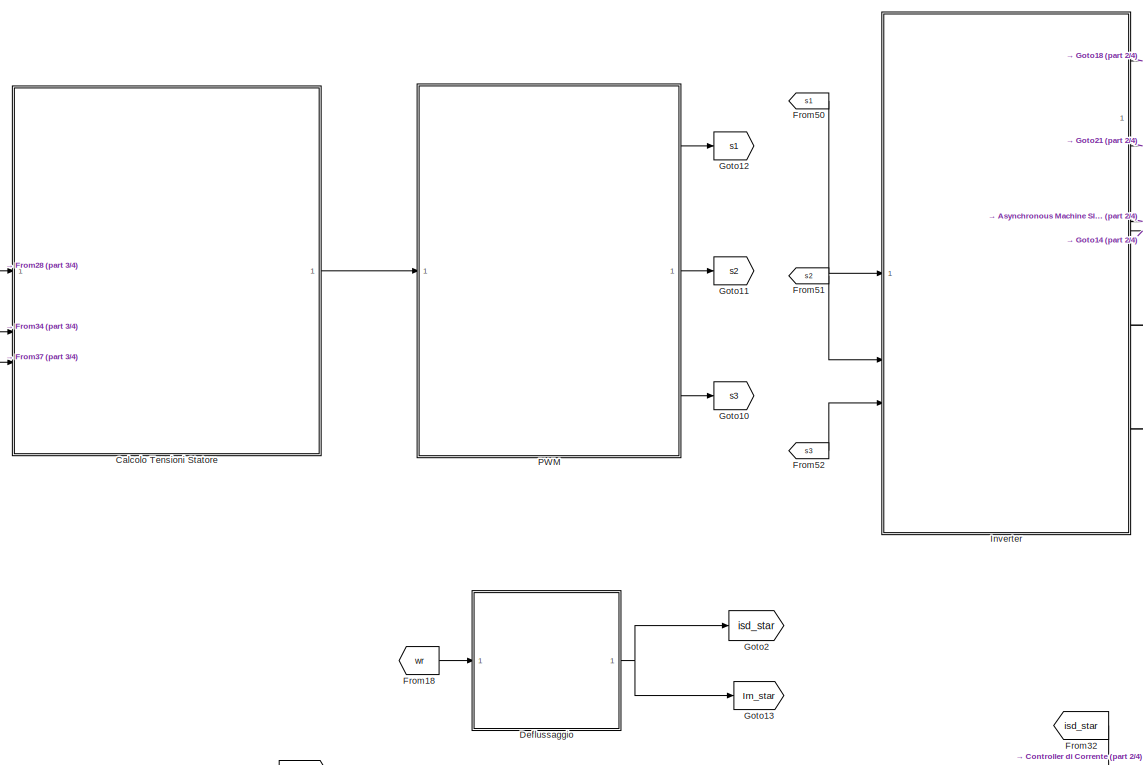
[diagram: root canvas - part 1/4, middle left region]
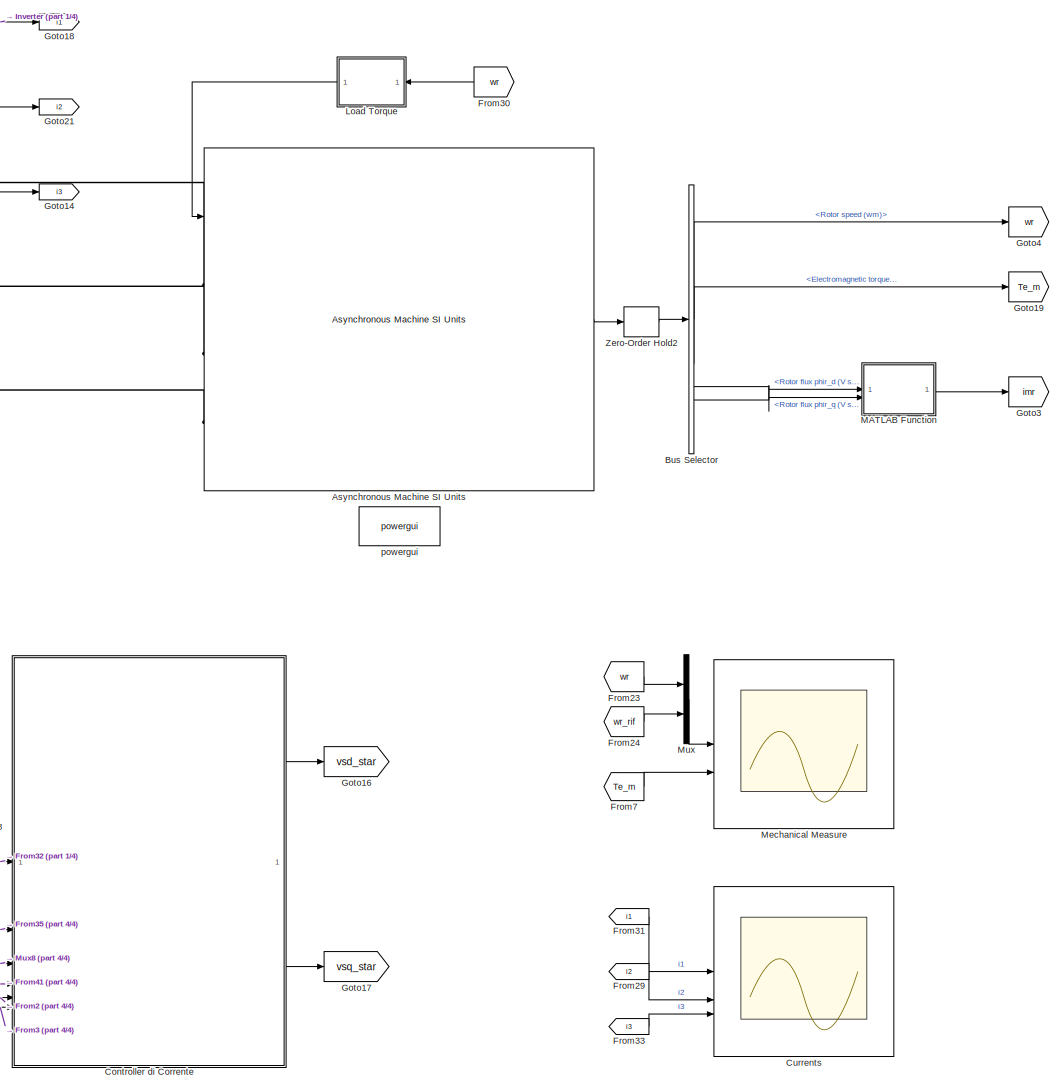
[diagram: root canvas - part 2/4, right side, full height]
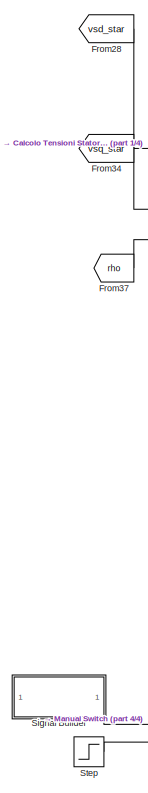
[diagram: root canvas - part 3/4, middle left region]
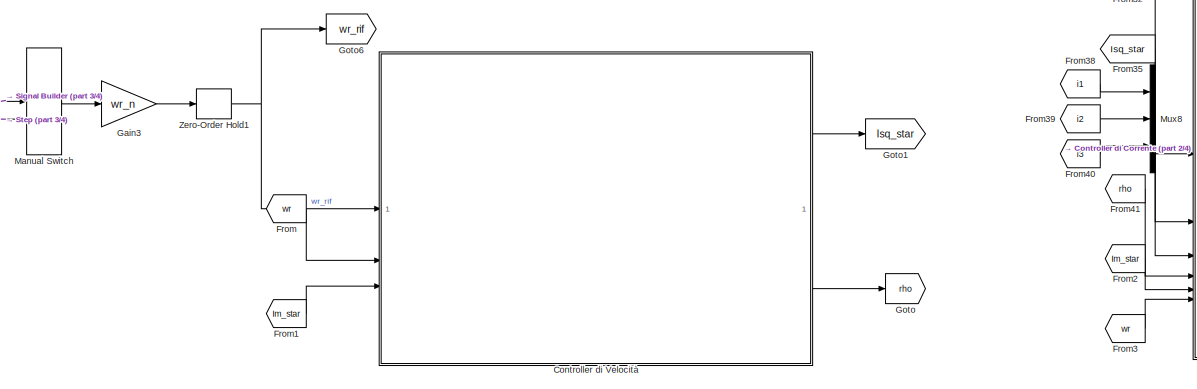
[diagram: root canvas - part 4/4, bottom left region]
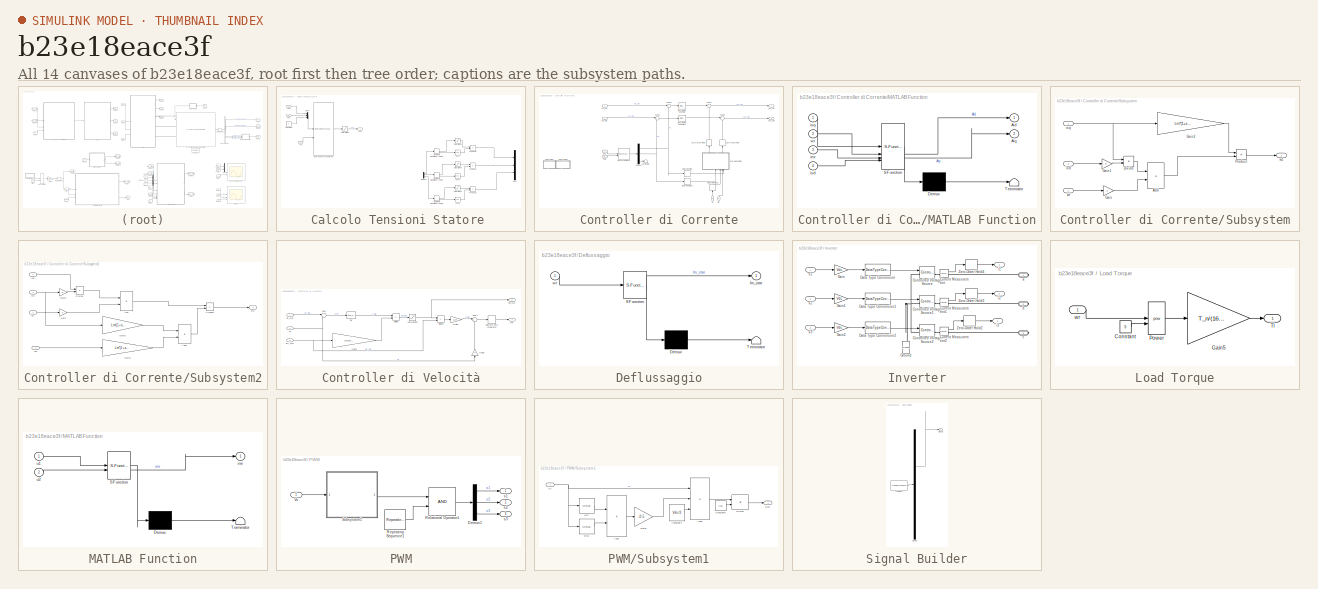
[diagram: thumbnail index - all 14 canvases of the model, root first then tree order]
MODEL slx_b23e18eace3f
KIND model
CONFIG AbsTol = auto
CONFIG EnableMultiTasking = off
CONFIG FixedStep = auto
CONFIG InitFcn = IFOCdatav6\n
CONFIG MaxStep = 1e-5
CONFIG MinStep = auto
CONFIG RelTol = 1e-4
CONFIG SampleTimeConstraint = Unconstrained
CONFIG SolverName = ode23tb
CONFIG StartTime = 0.0
CONFIG StopTime = 30
BLOCK [Reference] Asynchronous Machine SI Units  REF=spsAsynchronousMachineSIUnitsLib/Asynchronous Machine
SI Units
  LibrarySourceBlock = sps_lib/Electrical Machines/Asynchronous Machine\nSI Units
  SourceBlock = spsAsynchronousMachineSIUnitsLib/Asynchronous Machine\nSI Units
  SourceType = Asynchronous Machine
BLOCK [BusSelector] Bus Selector
  OutputSignals = Mechanical.Rotor speed (wm),Mechanical.Electromagnetic torque Te (N*m),Rotor measurements.Rotor flux phir_d (V s),Rotor measurements.Rotor flux phir_q (V s)
BLOCK [SubSystem] Calcolo Tensioni Statore 
BLOCK [ComplexToMagnitudeAngle] Calcolo Tensioni Statore /Complex to Magnitude-Angle3
  Commented = on
BLOCK [ComplexToMagnitudeAngle] Calcolo Tensioni Statore /Complex to Magnitude-Angle4
  Commented = on
BLOCK [ComplexToMagnitudeAngle] Calcolo Tensioni Statore /Complex to Magnitude-Angle5
  Commented = on
BLOCK [Constant] Calcolo Tensioni Statore /Constant4
  Value = 0
BLOCK [Trigonometry] Calcolo Tensioni Statore /Cos3
  Commented = on
  Operator = cos
BLOCK [Trigonometry] Calcolo Tensioni Statore /Cos4
  Commented = on
  Operator = cos
BLOCK [Trigonometry] Calcolo Tensioni Statore /Cos5
  Commented = on
  Operator = cos
BLOCK [Demux] Calcolo Tensioni Statore /Demux1
  Commented = on
  Outputs = 3
BLOCK [Reference] Calcolo Tensioni Statore /Inverse Park Transform1  REF=eeTransforms/Inverse
Park Transform
  LibrarySourceBlock = ee_sl_lib/Mathematical\nTransforms/Inverse\nPark Transform
  SourceBlock = eeTransforms/Inverse\nPark Transform
  SourceType = Inverse Park Transform
BLOCK [Mux] Calcolo Tensioni Statore /Mux1
  Commented = on
  DisplayOption = bar
  Inputs = 3
BLOCK [Mux] Calcolo Tensioni Statore /Mux7
  DisplayOption = bar
  Inputs = 3
BLOCK [Product] Calcolo Tensioni Statore /Product3
  Commented = on
BLOCK [Product] Calcolo Tensioni Statore /Product4
  Commented = on
BLOCK [Product] Calcolo Tensioni Statore /Product5
  Commented = on
BLOCK [Saturate] Calcolo Tensioni Statore /Saturation3
  LowerLimit = -Vsn_y*sqrt(2)
  UpperLimit = Vsn_y*sqrt(2)
BLOCK [Saturate] Calcolo Tensioni Statore /Saturation4
  Commented = on
  LowerLimit = -Vsn_y*sqrt(2)
  UpperLimit = Vsn_y*sqrt(2)
BLOCK [Saturate] Calcolo Tensioni Statore /Saturation5
  Commented = on
  LowerLimit = -Vsn_y*sqrt(2)
  UpperLimit = Vsn_y*sqrt(2)
BLOCK [Saturate] Calcolo Tensioni Statore /Saturation6
  Commented = on
  LowerLimit = -Vsn_y*sqrt(2)
  UpperLimit = Vsn_y*sqrt(2)
BLOCK [Outport] Calcolo Tensioni Statore /Vabc
BLOCK [Inport] Calcolo Tensioni Statore /rho
  Port = 3
BLOCK [Inport] Calcolo Tensioni Statore /vsd
BLOCK [Inport] Calcolo Tensioni Statore /vsq
  Port = 2
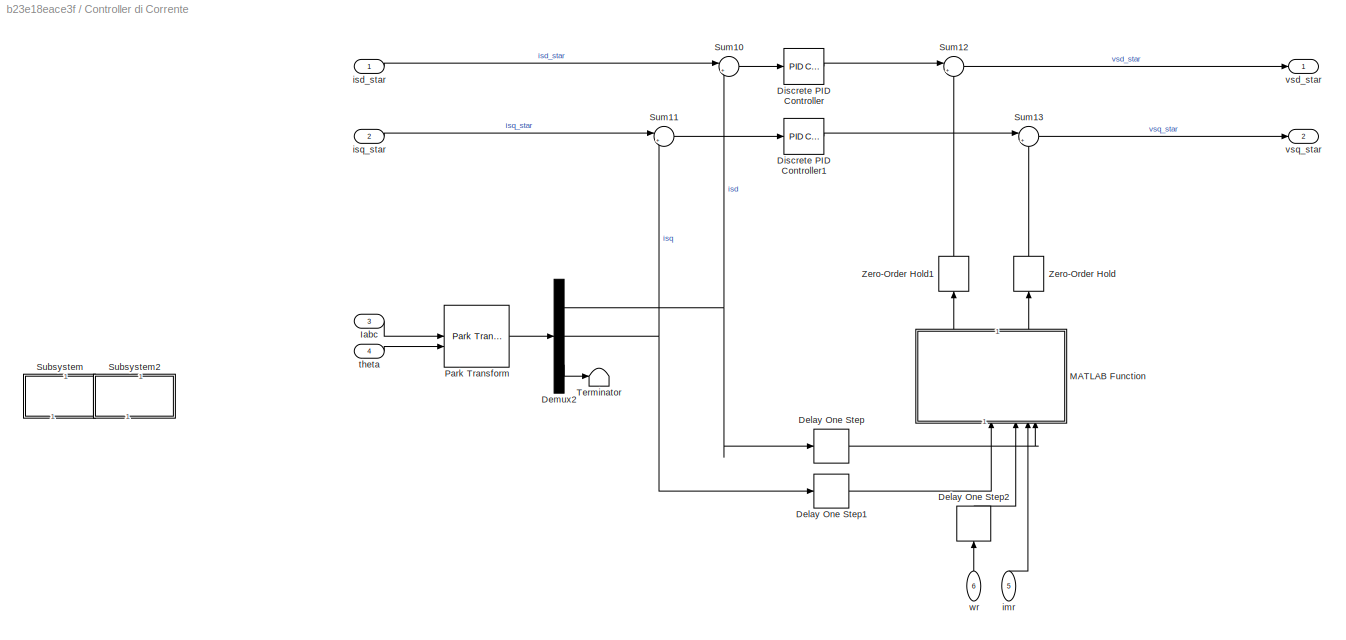
BLOCK [SubSystem] Controller di Corrente
BLOCK [Delay] Controller di Corrente/Delay One Step
  DelayLength = 1
  InputPortMap = u0
BLOCK [Delay] Controller di Corrente/Delay One Step1
  DelayLength = 1
  InitialCondition = Im_n
  InputPortMap = u0
BLOCK [Delay] Controller di Corrente/Delay One Step2
  DelayLength = 1
  InputPortMap = u0
  NameLocation = right
BLOCK [Demux] Controller di Corrente/Demux2
  Outputs = 3
BLOCK [Reference] Controller di Corrente/Discrete PID Controller  REF=slpidlib/PID Controller
  LibrarySourceBlock = simulink/Discrete/Discrete PID Controller
  SourceBlock = slpidlib/PID Controller
  SourceType = PID 1dof
BLOCK [Reference] Controller di Corrente/Discrete PID Controller1  REF=slpidlib/PID Controller
  LibrarySourceBlock = simulink/Discrete/Discrete PID Controller
  SourceBlock = slpidlib/PID Controller
  SourceType = PID 1dof
BLOCK [Inport] Controller di Corrente/Iabc
  Port = 3
BLOCK [SubSystem] Controller di Corrente/MATLAB Function
  ErrorFcn = Stateflow.Translate.translate
  LibrarySourceBlock = simulink/User-Defined\nFunctions/MATLAB Function
  NameLocation = right
  PermitHierarchicalResolution = ExplicitOnly
  SFBlockType = MATLAB Function
  TreatAsAtomicUnit = on
BLOCK [Demux] Controller di Corrente/MATLAB Function/ Demux 
  Outputs = 1
BLOCK [S-Function] Controller di Corrente/MATLAB Function/ SFunction 
  EnableBusSupport = on
  FunctionName = sf_sfun
  Parameters = Lm,Tr,p,sigma_r,sigma_s
  PortCounts = [4 3]
  SFcnIsStateOwnerBlock = off
  SFunctionDeploymentMode = off
  Tag = Stateflow S-Function 2
BLOCK [Terminator] Controller di Corrente/MATLAB Function/ Terminator 
BLOCK [Outport] Controller di Corrente/MATLAB Function/Ad
BLOCK [Outport] Controller di Corrente/MATLAB Function/Aq
  Port = 2
BLOCK [Inport] Controller di Corrente/MATLAB Function/imr
  Port = 3
BLOCK [Inport] Controller di Corrente/MATLAB Function/isd
  Port = 4
BLOCK [Inport] Controller di Corrente/MATLAB Function/isq
BLOCK [Inport] Controller di Corrente/MATLAB Function/wr
  Port = 2
BLOCK [Reference] Controller di Corrente/Park Transform  REF=eeTransforms/Park Transform
  LibrarySourceBlock = ee_sl_lib/Mathematical\nTransforms/Park Transform
  SourceBlock = eeTransforms/Park Transform
  SourceType = Park Transform
BLOCK [SubSystem] Controller di Corrente/Subsystem
  Commented = on
  NameLocation = right
BLOCK [Sum] Controller di Corrente/Subsystem/Add
  IconShape = rectangular
BLOCK [Product] Controller di Corrente/Subsystem/Divide
  Inputs = */
BLOCK [Gain] Controller di Corrente/Subsystem/Gain
  Gain = p
BLOCK [Gain] Controller di Corrente/Subsystem/Gain1
  Gain = Tr
BLOCK [Gain] Controller di Corrente/Subsystem/Gain2
  Gain = Lm*(1+sigma_s)-Lm/(1+sigma_r)
BLOCK [Product] Controller di Corrente/Subsystem/Product
BLOCK [Inport] Controller di Corrente/Subsystem/isd
  Port = 3
BLOCK [Inport] Controller di Corrente/Subsystem/isq
BLOCK [Outport] Controller di Corrente/Subsystem/w1
BLOCK [Inport] Controller di Corrente/Subsystem/wr
  Port = 2
BLOCK [SubSystem] Controller di Corrente/Subsystem2
  Commented = on
  NameLocation = right
BLOCK [Sum] Controller di Corrente/Subsystem2/Add
  IconShape = rectangular
BLOCK [Sum] Controller di Corrente/Subsystem2/Add1
  IconShape = rectangular
BLOCK [Product] Controller di Corrente/Subsystem2/Divide
  Inputs = */
BLOCK [Gain] Controller di Corrente/Subsystem2/Gain
  Gain = p
BLOCK [Gain] Controller di Corrente/Subsystem2/Gain1
  Gain = Tr
BLOCK [Gain] Controller di Corrente/Subsystem2/Gain2
  Gain = Lm*(1+sigma_s)-Lm/(1+sigma_r)
BLOCK [Gain] Controller di Corrente/Subsystem2/Gain3
  Gain = Lm/(1+sigma_r)
BLOCK [Product] Controller di Corrente/Subsystem2/Product
BLOCK [Inport] Controller di Corrente/Subsystem2/imr
  Port = 4
BLOCK [Inport] Controller di Corrente/Subsystem2/isd
BLOCK [Inport] Controller di Corrente/Subsystem2/isq
  Port = 3
BLOCK [Outport] Controller di Corrente/Subsystem2/w2
BLOCK [Inport] Controller di Corrente/Subsystem2/wr
  Port = 2
BLOCK [Sum] Controller di Corrente/Sum10
  Inputs = |+-
BLOCK [Sum] Controller di Corrente/Sum11
  Inputs = |+-
BLOCK [Sum] Controller di Corrente/Sum12
  Inputs = |++
BLOCK [Sum] Controller di Corrente/Sum13
  Inputs = |+-
BLOCK [Terminator] Controller di Corrente/Terminator
BLOCK [ZeroOrderHold] Controller di Corrente/Zero-Order Hold
  NameLocation = right
  SampleTime = -1
BLOCK [ZeroOrderHold] Controller di Corrente/Zero-Order Hold1
  NameLocation = right
  SampleTime = -1
BLOCK [Inport] Controller di Corrente/imr
  NameLocation = right
  Port = 5
BLOCK [Inport] Controller di Corrente/isd_star
BLOCK [Inport] Controller di Corrente/isq_star
  Port = 2
BLOCK [Inport] Controller di Corrente/theta
  Port = 4
BLOCK [Outport] Controller di Corrente/vsd_star
BLOCK [Outport] Controller di Corrente/vsq_star
  Port = 2
BLOCK [Inport] Controller di Corrente/wr
  NameLocation = right
  Port = 6
BLOCK [SubSystem] Controller di Velocità
BLOCK [DiscreteIntegrator] Controller di Velocità/Discrete-Time Integrator
  ICPrevOutput = DiscIntNeverNeededParam
  ICPrevScaledInput = DiscIntNeverNeededParam
  InitialConditionSetting = Auto
  SampleTime = Ts
BLOCK [Product] Controller di Velocità/Divide
  Inputs = */
BLOCK [Product] Controller di Velocità/Divide1
  Inputs = */
BLOCK [Gain] Controller di Velocità/Gain4
  Gain = 3/2*p*Lm/(1+sigma_r)
BLOCK [Gain] Controller di Velocità/Gain5
  Gain = 1/Tr
BLOCK [Gain] Controller di Velocità/Gain6
  Gain = p
  NameLocation = right
BLOCK [Reference] Controller di Velocità/Rw  REF=slpidlib/PID Controller
  SourceBlock = slpidlib/PID Controller
  SourceType = PID 1dof
BLOCK [Saturate] Controller di Velocità/Saturation2
  LowerLimit = -0.96*Is_n*sqrt(2)
  UpperLimit = 0.96*Is_n*sqrt(2)
BLOCK [Sum] Controller di Velocità/Sum
  Inputs = |+-
BLOCK [Sum] Controller di Velocità/Sum1
  Inputs = |++
BLOCK [Inport] Controller di Velocità/imr_star
  Port = 3
BLOCK [Outport] Controller di Velocità/isq_star
BLOCK [Outport] Controller di Velocità/rho
  Port = 2
BLOCK [Inport] Controller di Velocità/wr
  Port = 2
BLOCK [Inport] Controller di Velocità/wr_star
BLOCK [Scope] Currents
  Floating = off
  NumInputPorts = 3
  ScopeSpecificationString = Simulink.scopes.TimeScopeBlockCfg('CurrentConfiguration', extmgr.ConfigurationSet(extmgr.Configuration('Core','General UI',true),extmgr.Configuration('Core','Source UI',true),extmgr.Configuration('Sources','WiredSimulink',true,'DataLoggingVariableName','ScopeData2'),extmgr.Configuration('Visuals','Time Domain',true,'SerializedDisplays',{struct('MinYLimReal','-878.4974','MaxYLimReal','915.11608','Y...<+2684ch>
BLOCK [SubSystem] Deflussaggio
  ErrorFcn = Stateflow.Translate.translate
  PermitHierarchicalResolution = ExplicitOnly
  SFBlockType = MATLAB Function
  TreatAsAtomicUnit = on
BLOCK [Demux] Deflussaggio/ Demux 
  Outputs = 1
BLOCK [S-Function] Deflussaggio/ SFunction 
  EnableBusSupport = on
  FunctionName = sf_sfun
  Parameters = Im_n,wr_n
  PortCounts = [1 2]
  SFcnIsStateOwnerBlock = off
  SFunctionDeploymentMode = off
  Tag = Stateflow S-Function 3
BLOCK [Terminator] Deflussaggio/ Terminator 
BLOCK [Outport] Deflussaggio/Im_star
BLOCK [Inport] Deflussaggio/wr
BLOCK [From] From
  GotoTag = wr
BLOCK [From] From1
  GotoTag = Im_star
BLOCK [From] From18
  GotoTag = wr
BLOCK [From] From2
  GotoTag = Im_star
BLOCK [From] From23
  GotoTag = wr
BLOCK [From] From24
  GotoTag = wr_rif
BLOCK [From] From28
  GotoTag = vsd_star
BLOCK [From] From29
  GotoTag = i2
BLOCK [From] From3
  GotoTag = wr
BLOCK [From] From30
  GotoTag = wr
  NameLocation = top
BLOCK [From] From31
  GotoTag = i1
BLOCK [From] From32
  GotoTag = isd_star
BLOCK [From] From33
  GotoTag = i3
BLOCK [From] From34
  GotoTag = vsq_star
BLOCK [From] From35
  GotoTag = Isq_star
BLOCK [From] From37
  GotoTag = rho
BLOCK [From] From38
  GotoTag = i1
BLOCK [From] From39
  GotoTag = i2
BLOCK [From] From40
  GotoTag = i3
BLOCK [From] From41
  GotoTag = rho
BLOCK [From] From50
  GotoTag = s1
BLOCK [From] From51
  GotoTag = s2
BLOCK [From] From52
  GotoTag = s3
BLOCK [From] From7
  GotoTag = Te_m
BLOCK [Gain] Gain3
  Gain = wr_n
BLOCK [Goto] Goto
  GotoTag = rho
BLOCK [Goto] Goto1
  GotoTag = Isq_star
BLOCK [Goto] Goto10
  GotoTag = s3
  NameLocation = top
BLOCK [Goto] Goto11
  GotoTag = s2
  NameLocation = top
BLOCK [Goto] Goto12
  GotoTag = s1
BLOCK [Goto] Goto13
  GotoTag = Im_star
BLOCK [Goto] Goto14
  GotoTag = i3
BLOCK [Goto] Goto16
  GotoTag = vsd_star
BLOCK [Goto] Goto17
  GotoTag = vsq_star
BLOCK [Goto] Goto18
  GotoTag = i1
BLOCK [Goto] Goto19
  GotoTag = Te_m
BLOCK [Goto] Goto2
  GotoTag = isd_star
BLOCK [Goto] Goto21
  GotoTag = i2
BLOCK [Goto] Goto3
  GotoTag = imr
BLOCK [Goto] Goto4
  GotoTag = wr
BLOCK [Goto] Goto6
  GotoTag = wr_rif
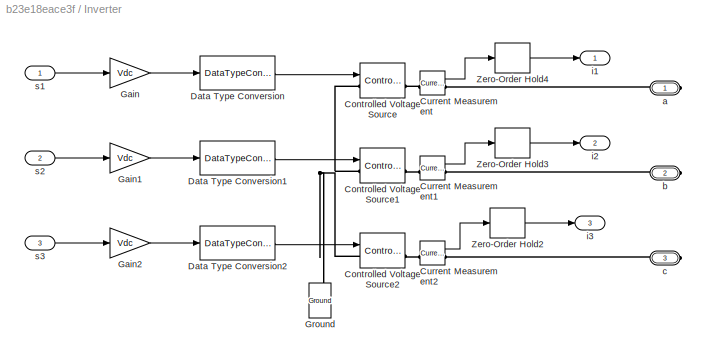
BLOCK [SubSystem] Inverter
BLOCK [Reference] Inverter/Controlled Voltage Source  REF=spsControlledVoltageSourceLib/Controlled Voltage Source
  LibrarySourceBlock = sps_lib/Sources/Controlled Voltage Source
  SourceBlock = spsControlledVoltageSourceLib/Controlled Voltage Source
  SourceType = Controlled Voltage Source
BLOCK [Reference] Inverter/Controlled Voltage Source1  REF=spsControlledVoltageSourceLib/Controlled Voltage Source
  LibrarySourceBlock = sps_lib/Sources/Controlled Voltage Source
  SourceBlock = spsControlledVoltageSourceLib/Controlled Voltage Source
  SourceType = Controlled Voltage Source
BLOCK [Reference] Inverter/Controlled Voltage Source2  REF=spsControlledVoltageSourceLib/Controlled Voltage Source
  LibrarySourceBlock = sps_lib/Sources/Controlled Voltage Source
  SourceBlock = spsControlledVoltageSourceLib/Controlled Voltage Source
  SourceType = Controlled Voltage Source
BLOCK [Reference] Inverter/Current Measurement  REF=spsCurrentMeasurementLib/Current Measurement
  LibrarySourceBlock = sps_lib/Sensors and Measurements/Current Measurement
  SourceBlock = spsCurrentMeasurementLib/Current Measurement
  SourceType = Current Measurement
  UserDataPersistent = on
BLOCK [Reference] Inverter/Current Measurement1  REF=spsCurrentMeasurementLib/Current Measurement
  LibrarySourceBlock = sps_lib/Sensors and Measurements/Current Measurement
  SourceBlock = spsCurrentMeasurementLib/Current Measurement
  SourceType = Current Measurement
  UserDataPersistent = on
BLOCK [Reference] Inverter/Current Measurement2  REF=spsCurrentMeasurementLib/Current Measurement
  LibrarySourceBlock = sps_lib/Sensors and Measurements/Current Measurement
  SourceBlock = spsCurrentMeasurementLib/Current Measurement
  SourceType = Current Measurement
  UserDataPersistent = on
BLOCK [DataTypeConversion] Inverter/Data Type Conversion
  OutDataTypeStr = double
  RndMeth = Floor
  SaturateOnIntegerOverflow = off
BLOCK [DataTypeConversion] Inverter/Data Type Conversion1
  OutDataTypeStr = double
  RndMeth = Floor
  SaturateOnIntegerOverflow = off
BLOCK [DataTypeConversion] Inverter/Data Type Conversion2
  OutDataTypeStr = double
  RndMeth = Floor
  SaturateOnIntegerOverflow = off
BLOCK [Gain] Inverter/Gain
  Gain = Vdc
BLOCK [Gain] Inverter/Gain1
  Gain = Vdc
BLOCK [Gain] Inverter/Gain2
  Gain = Vdc
BLOCK [Reference] Inverter/Ground  REF=spsGroundLib/Ground
  LibrarySourceBlock = sps_lib/Utilities/Ground
  NameLocation = right
  SourceBlock = spsGroundLib/Ground
  SourceType = Ground
BLOCK [ZeroOrderHold] Inverter/Zero-Order Hold2
  SampleTime = Ts
BLOCK [ZeroOrderHold] Inverter/Zero-Order Hold3
  SampleTime = Ts
BLOCK [ZeroOrderHold] Inverter/Zero-Order Hold4
  SampleTime = Ts
BLOCK [PMIOPort] Inverter/a
  Side = Right
BLOCK [PMIOPort] Inverter/b
  Port = 2
  Side = Right
BLOCK [PMIOPort] Inverter/c
  Port = 3
  Side = Right
BLOCK [Outport] Inverter/i1
BLOCK [Outport] Inverter/i2
  Port = 2
BLOCK [Outport] Inverter/i3
  Port = 3
BLOCK [Inport] Inverter/s1
BLOCK [Inport] Inverter/s2
  Port = 2
BLOCK [Inport] Inverter/s3
  Port = 3
BLOCK [SubSystem] Load Torque
  NameLocation = top
BLOCK [Constant] Load Torque/Constant
  Value = 3
BLOCK [Gain] Load Torque/Gain5
  Gain = T_n/(16*wr_n^3)
BLOCK [Math] Load Torque/Power
  Operator = pow
BLOCK [Outport] Load Torque/Tl
BLOCK [Inport] Load Torque/wr
BLOCK [SubSystem] MATLAB Function
  ErrorFcn = Stateflow.Translate.translate
  LibrarySourceBlock = simulink/User-Defined\nFunctions/MATLAB Function
  PermitHierarchicalResolution = ExplicitOnly
  SFBlockType = MATLAB Function
  TreatAsAtomicUnit = on
BLOCK [Demux] MATLAB Function/ Demux 
  Outputs = 1
BLOCK [S-Function] MATLAB Function/ SFunction 
  EnableBusSupport = on
  FunctionName = sf_sfun
  Parameters = Lm
  PortCounts = [2 2]
  SFcnIsStateOwnerBlock = off
  SFunctionDeploymentMode = off
  Tag = Stateflow S-Function 1
BLOCK [Terminator] MATLAB Function/ Terminator 
BLOCK [Outport] MATLAB Function/imr
BLOCK [Inport] MATLAB Function/u1
BLOCK [Inport] MATLAB Function/u2
  Port = 2
BLOCK [ManualSwitch] Manual Switch
BLOCK [Scope] Mechanical Measure
  Floating = off
  NumInputPorts = 2
  ScopeSpecificationString = Simulink.scopes.TimeScopeBlockCfg('CurrentConfiguration', extmgr.ConfigurationSet(extmgr.Configuration('Core','General UI',true),extmgr.Configuration('Core','Source UI',true),extmgr.Configuration('Sources','WiredSimulink',true,'DataLoggingVariableName','ScopeData1'),extmgr.Configuration('Visuals','Time Domain',true,'SerializedDisplays',{struct('MinYLimReal','-77.48808','MaxYLimReal','697.39268','Y...<+2137ch>
BLOCK [Mux] Mux
  DisplayOption = bar
  Inputs = 2
BLOCK [Mux] Mux8
  DisplayOption = bar
  Inputs = 3
BLOCK [SubSystem] PWM
BLOCK [Demux] PWM/Demux1
  Outputs = 3
BLOCK [RelationalOperator] PWM/Relational Operator1
  InputSameDT = off
  OutDataTypeStr = boolean
  RndMeth = Simplest
BLOCK [Reference] PWM/Repeating Sequence1  REF=simulink/Sources/Repeating
Sequence
  SourceBlock = simulink/Sources/Repeating\nSequence
  SourceType = Repeating table
BLOCK [SubSystem] PWM/Subsystem1
BLOCK [Sum] PWM/Subsystem1/Add1
  IconShape = rectangular
BLOCK [Sum] PWM/Subsystem1/Add2
  IconShape = rectangular
  Inputs = +++
BLOCK [Constant] PWM/Subsystem1/Constant7
  Value = Vdc/2
BLOCK [Constant] PWM/Subsystem1/Constant8
  Value = Vdc
BLOCK [Product] PWM/Subsystem1/Divide
  Inputs = */
  RndMeth = Zero
  SaturateOnIntegerOverflow = on
BLOCK [Outport] PWM/Subsystem1/Duty
BLOCK [Gain] PWM/Subsystem1/Gain1
  Gain = -0.5
BLOCK [MinMax] PWM/Subsystem1/Min
BLOCK [MinMax] PWM/Subsystem1/Min1
  Function = max
BLOCK [Inport] PWM/Subsystem1/Vs
  SampleTime = Ts
BLOCK [Inport] PWM/Vs
BLOCK [Outport] PWM/s1
BLOCK [Outport] PWM/s2
  Port = 2
BLOCK [Outport] PWM/s3
  Port = 3
BLOCK [SubSystem] Signal Builder
  ClipboardFcn = sigbuilder_block('clipboard');
  CloseFcn = sigbuilder_block('close');
  ContinueFcn = sigbuilder_block('continue');
  CopyFcn = sigbuilder_block('copy');
  DeleteFcn = sigbuilder_block('delete');
  LoadFcn = sigbuilder_block('load');
  MaskHideContents = on
  ModelCloseFcn = sigbuilder_block('modelClose');
  NameChangeFcn = sigbuilder_block('namechange');
  OpenFcn = sigbuilder_block('open',[433.2 162 550.8 400.2 ]);
  PauseFcn = sigbuilder_block('pause');
  PreSaveFcn = sigbuilder_block('preSave');
  StartFcn = sigbuilder_block('start');
  StopFcn = sigbuilder_block('stop');
  Tag = STV Subsys
BLOCK [Demux] Signal Builder/Demux
  DisplayOption = none
  Outputs = 1
  Tag = STV Demux
BLOCK [FromWorkspace] Signal Builder/FromWs
  Tag = STV FromWs
  VariableName = tuvar
BLOCK [Outport] Signal Builder/Signal 1
  Tag = STV Outport
BLOCK [Step] Step
  After = 2
  SampleTime = 0
  Time = 0
BLOCK [ZeroOrderHold] Zero-Order Hold1
  SampleTime = Ts
BLOCK [ZeroOrderHold] Zero-Order Hold2
  SampleTime = Ts
BLOCK [Reference] powergui  REF=sps_lib/powergui
  Priority = 1
  SourceBlock = sps_lib/powergui
  SourceType = PSB option menu block
LINE Asynchronous Machine SI Units:1 -> Zero-Order Hold2:1
LINE Bus Selector:1 -> Goto4:1
LINE Bus Selector:2 -> Goto19:1
LINE Bus Selector:3 -> MATLAB Function:1
LINE Bus Selector:4 -> MATLAB Function:2
LINE Calcolo Tensioni Statore /Complex to Magnitude-Angle3:1 -> Calcolo Tensioni Statore /Saturation6:1
LINE Calcolo Tensioni Statore /Complex to Magnitude-Angle3:2 -> Calcolo Tensioni Statore /Cos3:1
LINE Calcolo Tensioni Statore /Complex to Magnitude-Angle4:1 -> Calcolo Tensioni Statore /Saturation5:1
LINE Calcolo Tensioni Statore /Complex to Magnitude-Angle4:2 -> Calcolo Tensioni Statore /Cos4:1
LINE Calcolo Tensioni Statore /Complex to Magnitude-Angle5:1 -> Calcolo Tensioni Statore /Saturation4:1
LINE Calcolo Tensioni Statore /Complex to Magnitude-Angle5:2 -> Calcolo Tensioni Statore /Cos5:1
LINE Calcolo Tensioni Statore /Constant4:1 -> Calcolo Tensioni Statore /Mux7:3
LINE Calcolo Tensioni Statore /Cos3:1 -> Calcolo Tensioni Statore /Product5:2
LINE Calcolo Tensioni Statore /Cos4:1 -> Calcolo Tensioni Statore /Product4:2
LINE Calcolo Tensioni Statore /Cos5:1 -> Calcolo Tensioni Statore /Product3:2
LINE Calcolo Tensioni Statore /Demux1:1 -> Calcolo Tensioni Statore /Complex to Magnitude-Angle3:1
LINE Calcolo Tensioni Statore /Demux1:2 -> Calcolo Tensioni Statore /Complex to Magnitude-Angle4:1
LINE Calcolo Tensioni Statore /Demux1:3 -> Calcolo Tensioni Statore /Complex to Magnitude-Angle5:1
LINE Calcolo Tensioni Statore /Inverse Park Transform1:1 -> Calcolo Tensioni Statore /Saturation3:1
LINE Calcolo Tensioni Statore /Mux7:1 -> Calcolo Tensioni Statore /Inverse Park Transform1:1
LINE Calcolo Tensioni Statore /Product3:1 -> Calcolo Tensioni Statore /Mux1:3
LINE Calcolo Tensioni Statore /Product4:1 -> Calcolo Tensioni Statore /Mux1:2
LINE Calcolo Tensioni Statore /Product5:1 -> Calcolo Tensioni Statore /Mux1:1
LINE Calcolo Tensioni Statore /Saturation3:1 -> Calcolo Tensioni Statore /Vabc:1
LINE Calcolo Tensioni Statore /Saturation4:1 -> Calcolo Tensioni Statore /Product3:1
LINE Calcolo Tensioni Statore /Saturation5:1 -> Calcolo Tensioni Statore /Product4:1
LINE Calcolo Tensioni Statore /Saturation6:1 -> Calcolo Tensioni Statore /Product5:1
LINE Calcolo Tensioni Statore /rho:1 -> Calcolo Tensioni Statore /Inverse Park Transform1:2
LINE Calcolo Tensioni Statore /vsd:1 -> Calcolo Tensioni Statore /Mux7:1
LINE Calcolo Tensioni Statore /vsq:1 -> Calcolo Tensioni Statore /Mux7:2
LINE Calcolo Tensioni Statore :1 -> PWM:1
LINE Controller di Corrente/Delay One Step1:1 -> Controller di Corrente/MATLAB Function:1
LINE Controller di Corrente/Delay One Step2:1 -> Controller di Corrente/MATLAB Function:2
LINE Controller di Corrente/Delay One Step:1 -> Controller di Corrente/MATLAB Function:4
NET Controller di Corrente/Demux2:1 -> Controller di Corrente/Delay One Step:1, Controller di Corrente/Sum10:2
NET Controller di Corrente/Demux2:2 -> Controller di Corrente/Delay One Step1:1, Controller di Corrente/Sum11:2
LINE Controller di Corrente/Demux2:3 -> Controller di Corrente/Terminator:1
LINE Controller di Corrente/Discrete PID Controller1:1 -> Controller di Corrente/Sum13:1
LINE Controller di Corrente/Discrete PID Controller:1 -> Controller di Corrente/Sum12:1
LINE Controller di Corrente/Iabc:1 -> Controller di Corrente/Park Transform:1
LINE Controller di Corrente/MATLAB Function:1 -> Controller di Corrente/Zero-Order Hold1:1
LINE Controller di Corrente/MATLAB Function:2 -> Controller di Corrente/Zero-Order Hold:1
LINE Controller di Corrente/Park Transform:1 -> Controller di Corrente/Demux2:1
LINE Controller di Corrente/Subsystem/Add:1 -> Controller di Corrente/Subsystem/Product:2
LINE Controller di Corrente/Subsystem/Divide:1 -> Controller di Corrente/Subsystem/Add:1
LINE Controller di Corrente/Subsystem/Gain1:1 -> Controller di Corrente/Subsystem/Divide:2
LINE Controller di Corrente/Subsystem/Gain2:1 -> Controller di Corrente/Subsystem/Product:1
LINE Controller di Corrente/Subsystem/Gain:1 -> Controller di Corrente/Subsystem/Add:2
LINE Controller di Corrente/Subsystem/Product:1 -> Controller di Corrente/Subsystem/w1:1
LINE Controller di Corrente/Subsystem/isd:1 -> Controller di Corrente/Subsystem/Gain1:1
NET Controller di Corrente/Subsystem/isq:1 -> Controller di Corrente/Subsystem/Divide:1, Controller di Corrente/Subsystem/Gain2:1
LINE Controller di Corrente/Subsystem/wr:1 -> Controller di Corrente/Subsystem/Gain:1
LINE Controller di Corrente/Subsystem2/Add1:1 -> Controller di Corrente/Subsystem2/Product:2
LINE Controller di Corrente/Subsystem2/Add:1 -> Controller di Corrente/Subsystem2/Product:1
LINE Controller di Corrente/Subsystem2/Divide:1 -> Controller di Corrente/Subsystem2/Add:1
LINE Controller di Corrente/Subsystem2/Gain1:1 -> Controller di Corrente/Subsystem2/Divide:2
LINE Controller di Corrente/Subsystem2/Gain2:1 -> Controller di Corrente/Subsystem2/Add1:2
LINE Controller di Corrente/Subsystem2/Gain3:1 -> Controller di Corrente/Subsystem2/Add1:1
LINE Controller di Corrente/Subsystem2/Gain:1 -> Controller di Corrente/Subsystem2/Add:2
LINE Controller di Corrente/Subsystem2/Product:1 -> Controller di Corrente/Subsystem2/w2:1
NET Controller di Corrente/Subsystem2/imr:1 -> Controller di Corrente/Subsystem2/Gain1:1, Controller di Corrente/Subsystem2/Gain3:1
LINE Controller di Corrente/Subsystem2/isd:1 -> Controller di Corrente/Subsystem2/Gain2:1
LINE Controller di Corrente/Subsystem2/isq:1 -> Controller di Corrente/Subsystem2/Divide:1
LINE Controller di Corrente/Subsystem2/wr:1 -> Controller di Corrente/Subsystem2/Gain:1
LINE Controller di Corrente/Sum10:1 -> Controller di Corrente/Discrete PID Controller:1
LINE Controller di Corrente/Sum11:1 -> Controller di Corrente/Discrete PID Controller1:1
LINE Controller di Corrente/Sum12:1 -> Controller di Corrente/vsd_star:1
LINE Controller di Corrente/Sum13:1 -> Controller di Corrente/vsq_star:1
LINE Controller di Corrente/Zero-Order Hold1:1 -> Controller di Corrente/Sum12:2
LINE Controller di Corrente/Zero-Order Hold:1 -> Controller di Corrente/Sum13:2
LINE Controller di Corrente/imr:1 -> Controller di Corrente/MATLAB Function:3
LINE Controller di Corrente/isd_star:1 -> Controller di Corrente/Sum10:1
LINE Controller di Corrente/isq_star:1 -> Controller di Corrente/Sum11:1
LINE Controller di Corrente/theta:1 -> Controller di Corrente/Park Transform:2
LINE Controller di Corrente/wr:1 -> Controller di Corrente/Delay One Step2:1
LINE Controller di Corrente:1 -> Goto16:1
LINE Controller di Corrente:2 -> Goto17:1
LINE Controller di Velocità/Discrete-Time Integrator:1 -> Controller di Velocità/rho:1
LINE Controller di Velocità/Divide1:1 -> Controller di Velocità/Gain5:1
LINE Controller di Velocità/Divide:1 -> Controller di Velocità/Saturation2:1
LINE Controller di Velocità/Gain4:1 -> Controller di Velocità/Divide:2
LINE Controller di Velocità/Gain5:1 -> Controller di Velocità/Sum1:1
LINE Controller di Velocità/Gain6:1 -> Controller di Velocità/Sum1:2
LINE Controller di Velocità/Rw:1 -> Controller di Velocità/Divide:1
NET Controller di Velocità/Saturation2:1 -> Controller di Velocità/Divide1:1, Controller di Velocità/isq_star:1
LINE Controller di Velocità/Sum1:1 -> Controller di Velocità/Discrete-Time Integrator:1
LINE Controller di Velocità/Sum:1 -> Controller di Velocità/Rw:1
NET Controller di Velocità/imr_star:1 -> Controller di Velocità/Divide1:2, Controller di Velocità/Gain4:1
NET Controller di Velocità/wr:1 -> Controller di Velocità/Gain6:1, Controller di Velocità/Sum:2
LINE Controller di Velocità/wr_star:1 -> Controller di Velocità/Sum:1
LINE Controller di Velocità:1 -> Goto1:1
LINE Controller di Velocità:2 -> Goto:1
NET Deflussaggio:1 -> Goto13:1, Goto2:1
LINE From18:1 -> Deflussaggio:1
LINE From1:1 -> Controller di Velocità:3
LINE From23:1 -> Mux:1
LINE From24:1 -> Mux:2
LINE From28:1 -> Calcolo Tensioni Statore :1
LINE From29:1 -> Currents:2
LINE From2:1 -> Controller di Corrente:5
LINE From30:1 -> Load Torque:1
LINE From31:1 -> Currents:1
LINE From32:1 -> Controller di Corrente:1
LINE From33:1 -> Currents:3
LINE From34:1 -> Calcolo Tensioni Statore :2
LINE From35:1 -> Controller di Corrente:2
LINE From37:1 -> Calcolo Tensioni Statore :3
LINE From38:1 -> Mux8:1
LINE From39:1 -> Mux8:2
LINE From3:1 -> Controller di Corrente:6
LINE From40:1 -> Mux8:3
LINE From41:1 -> Controller di Corrente:4
LINE From50:1 -> Inverter:1
LINE From51:1 -> Inverter:2
LINE From52:1 -> Inverter:3
LINE From7:1 -> Mechanical Measure:2
LINE From:1 -> Controller di Velocità:2
LINE Gain3:1 -> Zero-Order Hold1:1
LINE Inverter/Current Measurement1:1 -> Inverter/Zero-Order Hold3:1
LINE Inverter/Current Measurement2:1 -> Inverter/Zero-Order Hold2:1
LINE Inverter/Current Measurement:1 -> Inverter/Zero-Order Hold4:1
LINE Inverter/Data Type Conversion1:1 -> Inverter/Controlled Voltage Source1:1
LINE Inverter/Data Type Conversion2:1 -> Inverter/Controlled Voltage Source2:1
LINE Inverter/Data Type Conversion:1 -> Inverter/Controlled Voltage Source:1
LINE Inverter/Gain1:1 -> Inverter/Data Type Conversion1:1
LINE Inverter/Gain2:1 -> Inverter/Data Type Conversion2:1
LINE Inverter/Gain:1 -> Inverter/Data Type Conversion:1
LINE Inverter/Zero-Order Hold2:1 -> Inverter/i3:1
LINE Inverter/Zero-Order Hold3:1 -> Inverter/i2:1
LINE Inverter/Zero-Order Hold4:1 -> Inverter/i1:1
LINE Inverter/s1:1 -> Inverter/Gain:1
LINE Inverter/s2:1 -> Inverter/Gain1:1
LINE Inverter/s3:1 -> Inverter/Gain2:1
LINE Inverter:1 -> Goto18:1
LINE Inverter:2 -> Goto21:1
LINE Inverter:3 -> Goto14:1
LINE Load Torque/Constant:1 -> Load Torque/Power:2
LINE Load Torque/Gain5:1 -> Load Torque/Tl:1
LINE Load Torque/Power:1 -> Load Torque/Gain5:1
LINE Load Torque/wr:1 -> Load Torque/Power:1
LINE Load Torque:1 -> Asynchronous Machine SI Units:1
LINE MATLAB Function:1 -> Goto3:1
LINE Manual Switch:1 -> Gain3:1
LINE Mux8:1 -> Controller di Corrente:3
LINE Mux:1 -> Mechanical Measure:1
LINE PWM/Demux1:1 -> PWM/s1:1
LINE PWM/Demux1:2 -> PWM/s2:1
LINE PWM/Demux1:3 -> PWM/s3:1
LINE PWM/Relational Operator1:1 -> PWM/Demux1:1
LINE PWM/Repeating Sequence1:1 -> PWM/Relational Operator1:2
LINE PWM/Subsystem1/Add1:1 -> PWM/Subsystem1/Gain1:1
LINE PWM/Subsystem1/Add2:1 -> PWM/Subsystem1/Divide:1
LINE PWM/Subsystem1/Constant7:1 -> PWM/Subsystem1/Add2:3
LINE PWM/Subsystem1/Constant8:1 -> PWM/Subsystem1/Divide:2
LINE PWM/Subsystem1/Divide:1 -> PWM/Subsystem1/Duty:1
LINE PWM/Subsystem1/Gain1:1 -> PWM/Subsystem1/Add2:2
LINE PWM/Subsystem1/Min1:1 -> PWM/Subsystem1/Add1:2
LINE PWM/Subsystem1/Min:1 -> PWM/Subsystem1/Add1:1
NET PWM/Subsystem1/Vs:1 -> PWM/Subsystem1/Add2:1, PWM/Subsystem1/Min1:1, PWM/Subsystem1/Min:1
LINE PWM/Subsystem1:1 -> PWM/Relational Operator1:1
LINE PWM/Vs:1 -> PWM/Subsystem1:1
LINE PWM:1 -> Goto12:1
LINE PWM:2 -> Goto11:1
LINE PWM:3 -> Goto10:1
LINE Signal Builder:1 -> Manual Switch:1
LINE Step:1 -> Manual Switch:2
NET Zero-Order Hold1:1 -> Controller di Velocità:1, Goto6:1
LINE Zero-Order Hold2:1 -> Bus Selector:1
PLINE Asynchronous Machine SI Units:LConn1 -- Inverter:RConn1
PLINE Asynchronous Machine SI Units:LConn2 -- Inverter:RConn2
PLINE Asynchronous Machine SI Units:LConn3 -- Inverter:RConn3
PNET net1: Inverter/Controlled Voltage Source1:LConn1 -- Inverter/Controlled Voltage Source2:LConn1 -- Inverter/Controlled Voltage Source:LConn1 -- Inverter/Ground:LConn1
PLINE Inverter/Controlled Voltage Source1:RConn1 -- Inverter/Current Measurement1:LConn1
PLINE Inverter/Controlled Voltage Source2:RConn1 -- Inverter/Current Measurement2:LConn1
PLINE Inverter/Controlled Voltage Source:RConn1 -- Inverter/Current Measurement:LConn1
PLINE Inverter/Current Measurement1:RConn1 -- Inverter/b:RConn1
PLINE Inverter/Current Measurement2:RConn1 -- Inverter/c:RConn1
PLINE Inverter/Current Measurement:RConn1 -- Inverter/a:RConn1
note: NET lines group one-source signal fan-out (src -> all destinations, sorted); 1:1 wires keep LINE; PNET lines group multi-terminal physical nets as a canonical sorted terminal list (undirected conserving connections); 2-terminal nets keep the pairwise PLINE form
CHART MATLAB Function states=1 transitions=1
  STATE_LABEL 'eML_blk_kernel()'
  STATE_LABEL 'SCRIPT:\nfunction imr = fcn(u1,u2, Lm)\n\nphi = sqrt(u1^(2)+u2^(2));\nimr = phi/Lm;\nend'
CHART Controller di Corrente/MATLAB Function states=1 transitions=1
  STATE_LABEL 'eML_blk_kernel()'
  STATE_LABEL 'SCRIPT:\nfunction [Ad, Aq] = decoupling(isq, wr, imr, isd, p, Tr, sigma_r, sigma_s, Lm)\n\ndelta = Lm*(1+sigma_s) - Lm/(1+sigma_r);\n\nAd = delta*isq*(p*wr + isq/Tr/imr) + Lm/(1+sigma_r)*(isd-imr)/Tr;\n\nAq = (p*wr + isq/Tr/imr) * (delta*isd + imr*Lm/(1+sigma_r));'
CHART Deflussaggio states=1 transitions=1
  STATE_LABEL 'eML_blk_kernel()'
  STATE_LABEL 'SCRIPT:\nfunction Im_star = deflussaggio(wr, wr_n, Im_n)\nk = Im_n*wr_n;\n\nif wr > wr_n\n    Im_star = k/((sqrt(wr_n))*(sqrt(wr)));\n    %Im_star = k/wr;\nelse if wr < -wr_n\n    Im_star = -k/((sqrt(wr_n))*(sqrt(wr)));\n    %Im_star = -k/wr;\n    else\n    Im_star = Im_n;\nend\nend\nend\n'
CHART  states=0 transitions=0
CHART  states=0 transitions=0
CHART  states=0 transitions=0
